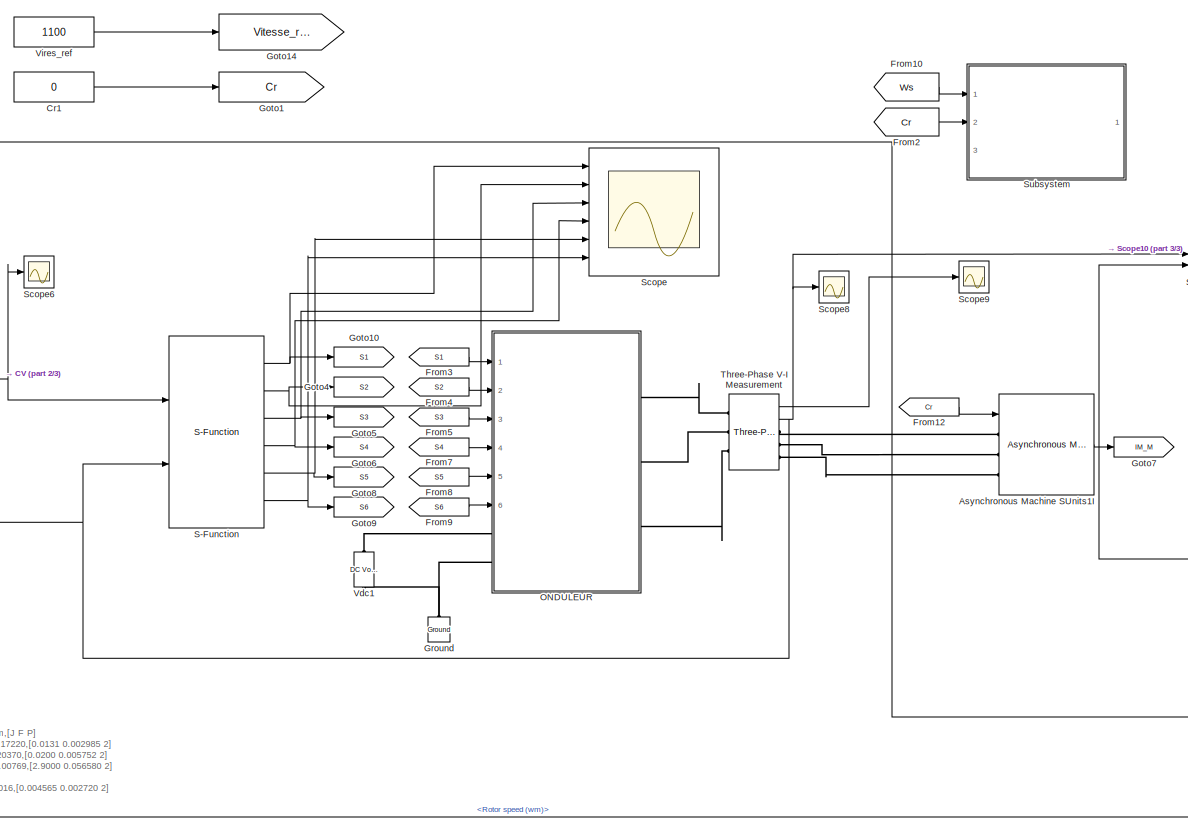
[diagram: root canvas - part 1/3, center side, full height]
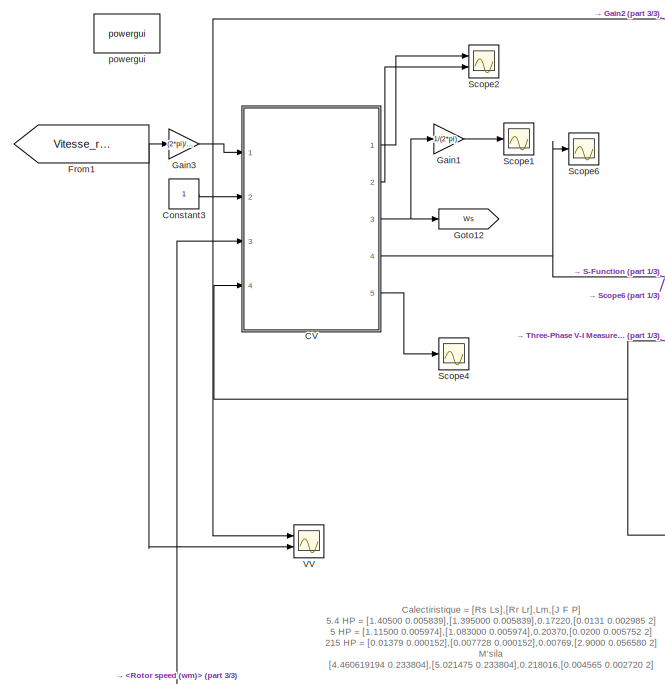
[diagram: root canvas - part 2/3, left side, full height]
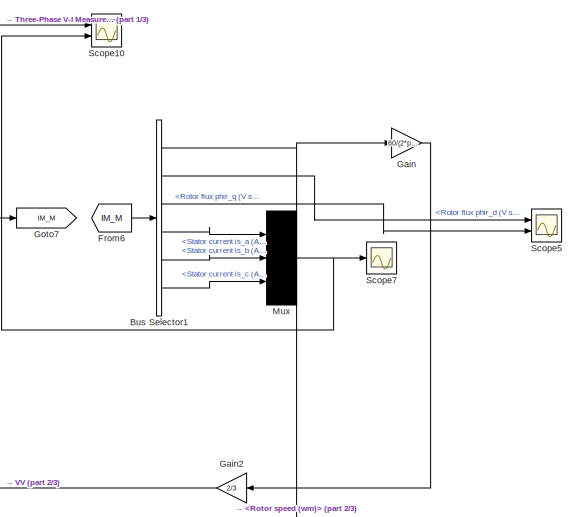
[diagram: root canvas - part 3/3, middle right region]
MODEL slx_9cb872e651f4
KIND model
CONFIG AbsTol = auto
CONFIG FixedStep = 1e-6
CONFIG MaxStep = auto
CONFIG MinStep = auto
CONFIG RelTol = 1e-3
CONFIG SampleTimeConstraint = Unconstrained
CONFIG Solver = FixedStepAuto
CONFIG SolverMode = Auto
CONFIG SolverName = FixedStepAuto
CONFIG StartTime = 0.0
CONFIG StopTime = 10
BLOCK [Reference] Asynchronous Machine SUnits1I   REF=powerlib/Machines/Asynchronous Machine
SI Units
  Ports = [1, 1, 0, 0, 0, 3]
  SourceBlock = powerlib/Machines/Asynchronous Machine\nSI Units
  SourceType = Asynchronous Machine
BLOCK [BusSelector] Bus Selector1
  OutputSignals = Mechanical.Rotor speed (wm),Rotor measurements.Rotor flux phir_d (V s),Rotor measurements.Rotor flux phir_q (V s),Stator measurements.Stator current is_a (A),Stator measurements.Stator current is_b (A),Stator measurements.Stator current is_c (A)
  Ports = [1, 6]
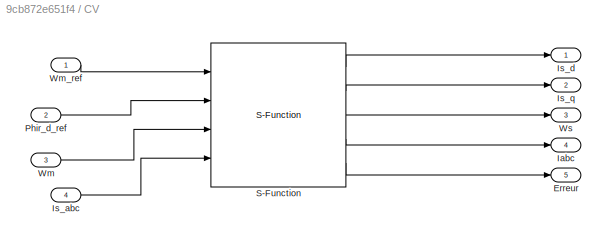
BLOCK [SubSystem] CV
  Ports = [4, 5]
  RequestExecContextInheritance = off
  Variant = off
BLOCK [Outport] CV/Erreur
  IconDisplay = Port number
  Port = 5
BLOCK [Outport] CV/Iabc
  IconDisplay = Port number
  Port = 4
BLOCK [Inport] CV/Is_abc
  IconDisplay = Port number
  Port = 4
BLOCK [Outport] CV/Is_d
  IconDisplay = Port number
BLOCK [Outport] CV/Is_q
  IconDisplay = Port number
  Port = 2
BLOCK [Inport] CV/Phir_d_ref
  IconDisplay = Port number
  Port = 2
BLOCK [S-Function] CV/S-Function
  EnableBusSupport = off
  FunctionName = CGA
  Parameters = [1.40500 0.005839],[1.395000 0.005839],0.17220,[0.0131 0.002985 2]
  Ports = [4, 5]
  SFunctionDeploymentMode = off
BLOCK [Inport] CV/Wm
  IconDisplay = Port number
  Port = 3
BLOCK [Inport] CV/Wm_ref
  IconDisplay = Port number
BLOCK [Outport] CV/Ws
  IconDisplay = Port number
  Port = 3
BLOCK [Constant] Constant3
BLOCK [Constant] Cr1
  Value = 0
BLOCK [From] From1
  GotoTag = Vitesse_ref
BLOCK [From] From10
  Commented = on
  GotoTag = Ws
BLOCK [From] From12
  GotoTag = Cr
BLOCK [From] From2
  Commented = on
  GotoTag = Cr
BLOCK [From] From3
  GotoTag = S1
BLOCK [From] From4
  GotoTag = S2
BLOCK [From] From5
  GotoTag = S3
BLOCK [From] From6
  GotoTag = IM_M
BLOCK [From] From7
  GotoTag = S4
BLOCK [From] From8
  GotoTag = S5
BLOCK [From] From9
  GotoTag = S6
BLOCK [Gain] Gain
  Gain = 60/(2*pi)
  OutDataTypeStr = Inherit: Inherit via internal rule
  ParamDataTypeStr = Inherit: Inherit via internal rule
  SaturateOnIntegerOverflow = off
BLOCK [Gain] Gain1
  Gain = 1/(2*pi)
  OutDataTypeStr = Inherit: Inherit via internal rule
  ParamDataTypeStr = Inherit: Inherit via internal rule
  SaturateOnIntegerOverflow = off
BLOCK [Gain] Gain2
  Gain = 2/3
  OutDataTypeStr = Inherit: Inherit via internal rule
  ParamDataTypeStr = Inherit: Inherit via internal rule
  SaturateOnIntegerOverflow = off
BLOCK [Gain] Gain3
  Gain = (2*pi)/20
  OutDataTypeStr = Inherit: Inherit via internal rule
  ParamDataTypeStr = Inherit: Inherit via internal rule
  SaturateOnIntegerOverflow = off
BLOCK [Goto] Goto1
  GotoTag = Cr
BLOCK [Goto] Goto10
  GotoTag = S1
BLOCK [Goto] Goto12
  GotoTag = Ws
BLOCK [Goto] Goto14
  GotoTag = Vitesse_ref
BLOCK [Goto] Goto4
  GotoTag = S2
BLOCK [Goto] Goto5
  GotoTag = S3
BLOCK [Goto] Goto6
  GotoTag = S4
BLOCK [Goto] Goto7
  GotoTag = IM_M
BLOCK [Goto] Goto8
  GotoTag = S5
BLOCK [Goto] Goto9
  GotoTag = S6
BLOCK [Reference] Ground  REF=powerlib/Elements/Ground
  Ports = [0, 0, 0, 0, 0, 1]
  SourceBlock = powerlib/Elements/Ground
  SourceType = Ground
BLOCK [Mux] Mux
  DisplayOption = bar
  Inputs = 3
  Ports = [3, 1]
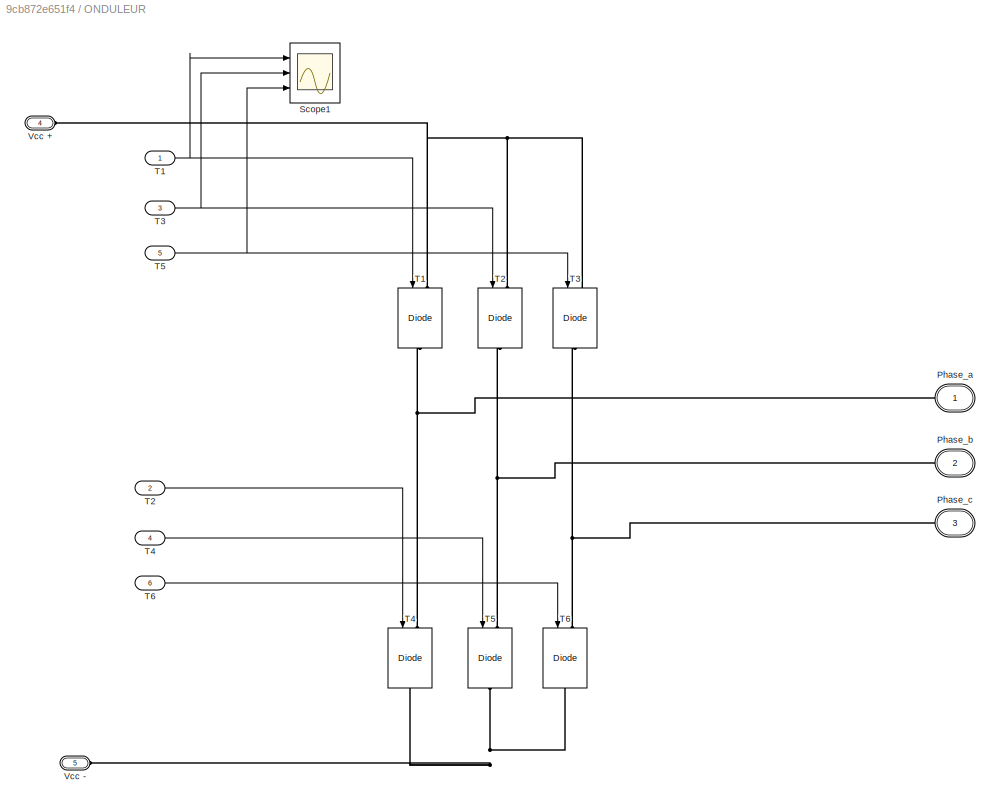
BLOCK [SubSystem] ONDULEUR
  Ports = [6, 0, 0, 0, 0, 2, 3]
  RequestExecContextInheritance = off
  Variant = off
BLOCK [PMIOPort] ONDULEUR/Phase_a
  Port = 1
  Side = Right
  Tag = PMCPort
BLOCK [PMIOPort] ONDULEUR/Phase_b
  Port = 2
  Side = Right
  Tag = PMCPort
BLOCK [PMIOPort] ONDULEUR/Phase_c
  Port = 3
  Side = Right
  Tag = PMCPort
BLOCK [Scope] ONDULEUR/Scope1
  NumInputPorts = 3
  Ports = [3]
  ScopeSpecificationString = Simulink.scopes.TimeScopeBlockCfg('CurrentConfiguration', extmgr.ConfigurationSet(extmgr.Configuration('Core','General UI',true),extmgr.Configuration('Core','Source UI',true),extmgr.Configuration('Sources','WiredSimulink',true,'DataLoggingVariableName','ScopeData1'),extmgr.Configuration('Visuals','Time Domain',true,'SerializedDisplays',{struct('MinYLimReal','-0.125','MaxYLimReal','1.125','YLabelRe...<+2816ch>
BLOCK [Reference] ONDULEUR/T1  REF=powerlib/Power
Electronics/IGBT//Diode
  Ports = [1, 0, 0, 0, 0, 1, 1]
  SourceBlock = powerlib/Power\nElectronics/IGBT//Diode
  SourceType = IGBT/Diode
BLOCK [Inport] ONDULEUR/T1 
  IconDisplay = Port number
BLOCK [Reference] ONDULEUR/T2  REF=powerlib/Power
Electronics/IGBT//Diode
  Ports = [1, 0, 0, 0, 0, 1, 1]
  SourceBlock = powerlib/Power\nElectronics/IGBT//Diode
  SourceType = IGBT/Diode
BLOCK [Inport] ONDULEUR/T2 
  IconDisplay = Port number
  Port = 2
BLOCK [Reference] ONDULEUR/T3  REF=powerlib/Power
Electronics/IGBT//Diode
  Ports = [1, 0, 0, 0, 0, 1, 1]
  SourceBlock = powerlib/Power\nElectronics/IGBT//Diode
  SourceType = IGBT/Diode
BLOCK [Inport] ONDULEUR/T3  
  IconDisplay = Port number
  Port = 3
BLOCK [Reference] ONDULEUR/T4  REF=powerlib/Power
Electronics/IGBT//Diode
  Ports = [1, 0, 0, 0, 0, 1, 1]
  SourceBlock = powerlib/Power\nElectronics/IGBT//Diode
  SourceType = IGBT/Diode
BLOCK [Inport] ONDULEUR/T4 
  IconDisplay = Port number
  Port = 4
BLOCK [Reference] ONDULEUR/T5  REF=powerlib/Power
Electronics/IGBT//Diode
  Ports = [1, 0, 0, 0, 0, 1, 1]
  SourceBlock = powerlib/Power\nElectronics/IGBT//Diode
  SourceType = IGBT/Diode
BLOCK [Inport] ONDULEUR/T5 
  IconDisplay = Port number
  Port = 5
BLOCK [Reference] ONDULEUR/T6  REF=powerlib/Power
Electronics/IGBT//Diode
  Ports = [1, 0, 0, 0, 0, 1, 1]
  SourceBlock = powerlib/Power\nElectronics/IGBT//Diode
  SourceType = IGBT/Diode
BLOCK [Inport] ONDULEUR/T6 
  IconDisplay = Port number
  Port = 6
BLOCK [PMIOPort] ONDULEUR/Vcc +
  Port = 4
  Side = Left
BLOCK [PMIOPort] ONDULEUR/Vcc -
  Port = 5
  Side = Left
BLOCK [S-Function] S-Function
  EnableBusSupport = off
  FunctionName = HYSTERISISE
  Ports = [2, 6]
  SFunctionDeploymentMode = off
BLOCK [Scope] Scope
  NumInputPorts = 6
  Ports = [6]
  ScopeSpecificationString = Simulink.scopes.TimeScopeBlockCfg('CurrentConfiguration', extmgr.ConfigurationSet(extmgr.Configuration('Core','General UI',true),extmgr.Configuration('Core','Source UI',true),extmgr.Configuration('Sources','WiredSimulink',true,'DataLoggingVariableName','ScopeData1'),extmgr.Configuration('Visuals','Time Domain',true,'SerializedDisplays',{struct('MinYLimReal','-0.125','MaxYLimReal','1.125','YLabelRe...<+1535ch>
BLOCK [Scope] Scope1
  Ports = [1]
  ScopeSpecificationString = Simulink.scopes.TimeScopeBlockCfg('CurrentConfiguration', extmgr.ConfigurationSet(extmgr.Configuration('Core','General UI',true),extmgr.Configuration('Core','Source UI',true),extmgr.Configuration('Sources','WiredSimulink',true,'DataLoggingVariableName','ScopeData2'),extmgr.Configuration('Visuals','Time Domain',true,'SerializedDisplays',{struct('MinYLimReal','-9.93243','MaxYLimReal','160.07281','YL...<+1473ch>
BLOCK [Scope] Scope10
  NumInputPorts = 2
  Ports = [2]
  ScopeSpecificationString = Simulink.scopes.TimeScopeBlockCfg('CurrentConfiguration', extmgr.ConfigurationSet(extmgr.Configuration('Core','General UI',true),extmgr.Configuration('Core','Source UI',true),extmgr.Configuration('Sources','WiredSimulink',true,'DataLoggingVariableName','ScopeData1'),extmgr.Configuration('Visuals','Time Domain',true,'SerializedDisplays',{struct('MinYLimReal','-36.09789','MaxYLimReal','36.09445','YL...<+2323ch>
BLOCK [Scope] Scope2
  NumInputPorts = 2
  Ports = [2]
  ScopeSpecificationString = Simulink.scopes.TimeScopeBlockCfg('CurrentConfiguration', extmgr.ConfigurationSet(extmgr.Configuration('Core','General UI',true),extmgr.Configuration('Core','Source UI',true),extmgr.Configuration('Sources','WiredSimulink',true,'DataLoggingVariableName','ScopeData3'),extmgr.Configuration('Visuals','Time Domain',true,'SerializedDisplays',{struct('MinYLimReal','-23994.07368','MaxYLimReal','219207.261...<+1459ch>
BLOCK [Scope] Scope4
  Ports = [1]
  ScopeSpecificationString = Simulink.scopes.TimeScopeBlockCfg('CurrentConfiguration', extmgr.ConfigurationSet(extmgr.Configuration('Core','General UI',true),extmgr.Configuration('Core','Source UI',true),extmgr.Configuration('Sources','WiredSimulink',true,'DataLoggingVariableName','ScopeData5'),extmgr.Configuration('Visuals','Time Domain',true,'SerializedDisplays',{struct('MinYLimReal','-1.00133','MaxYLimReal','4.01269','YLab...<+1461ch>
BLOCK [Scope] Scope5
  NumInputPorts = 2
  Ports = [2]
  ScopeSpecificationString = Simulink.scopes.TimeScopeBlockCfg('CurrentConfiguration', extmgr.ConfigurationSet(extmgr.Configuration('Core','General UI',true),extmgr.Configuration('Core','Source UI',true),extmgr.Configuration('Sources','WiredSimulink',true,'DataLoggingVariableName','ScopeData21','DataLoggingLimitDataPoints',true,'DataLoggingSaveFormat','Array','DataLoggingDecimation','1','DataLoggingDecimateData',true),extmgr....<+1567ch>
BLOCK [Scope] Scope6
  Ports = [1]
  ScopeSpecificationString = Simulink.scopes.TimeScopeBlockCfg('CurrentConfiguration', extmgr.ConfigurationSet(extmgr.Configuration('Core','General UI',true),extmgr.Configuration('Core','Source UI',true),extmgr.Configuration('Sources','WiredSimulink',true,'DataLoggingVariableName','ScopeData6'),extmgr.Configuration('Visuals','Time Domain',true,'SerializedDisplays',{struct('MinYLimReal','-71.4649','MaxYLimReal','66.7174','YLab...<+1510ch>
BLOCK [Scope] Scope7
  Ports = [1]
  ScopeSpecificationString = Simulink.scopes.TimeScopeBlockCfg('CurrentConfiguration', extmgr.ConfigurationSet(extmgr.Configuration('Core','General UI',true),extmgr.Configuration('Core','Source UI',true),extmgr.Configuration('Sources','WiredSimulink',true,'DataLoggingVariableName','ScopeData1'),extmgr.Configuration('Visuals','Time Domain',true,'SerializedDisplays',{struct('MinYLimReal','-34.82652','MaxYLimReal','34.8389','YLa...<+1542ch>
BLOCK [Scope] Scope8
  Ports = [1]
  ScopeSpecificationString = Simulink.scopes.TimeScopeBlockCfg('CurrentConfiguration', extmgr.ConfigurationSet(extmgr.Configuration('Core','General UI',true),extmgr.Configuration('Core','Source UI',true),extmgr.Configuration('Sources','WiredSimulink',true,'DataLoggingVariableName','ScopeData2'),extmgr.Configuration('Visuals','Time Domain',true,'SerializedDisplays',{struct('MinYLimReal','-17.53345','MaxYLimReal','17.53293','YL...<+1606ch>
BLOCK [Scope] Scope9
  Ports = [1]
  ScopeSpecificationString = Simulink.scopes.TimeScopeBlockCfg('CurrentConfiguration', extmgr.ConfigurationSet(extmgr.Configuration('Core','General UI',true),extmgr.Configuration('Core','Source UI',true),extmgr.Configuration('Sources','WiredSimulink',true,'DataLoggingVariableName','ScopeData3'),extmgr.Configuration('Visuals','Time Domain',true,'SerializedDisplays',{struct('MinYLimReal','-290.4606','MaxYLimReal','792.91317','Y...<+1585ch>
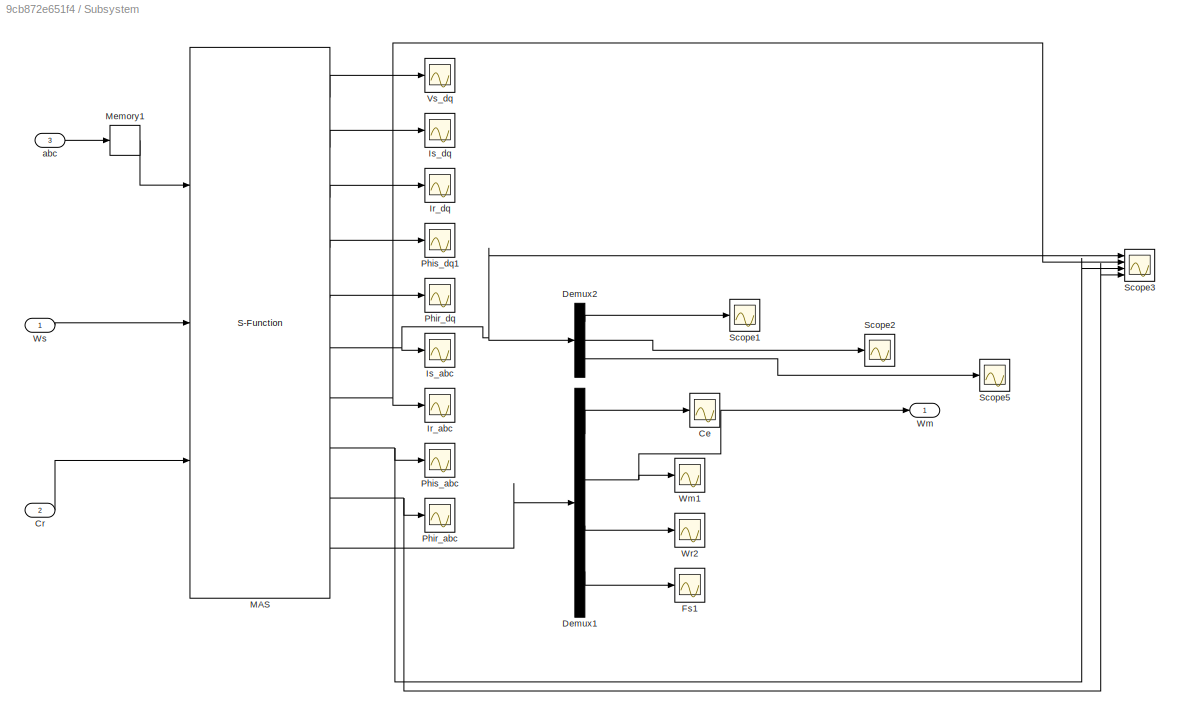
BLOCK [SubSystem] Subsystem
  Commented = on
  Ports = [3, 1]
  RequestExecContextInheritance = off
  Variant = off
BLOCK [Scope] Subsystem/Ce
  Ports = [1]
  ScopeSpecificationString = C++SS(StrPVP('SaveName','ScopeData2'),StrPVP('LimitDataPoints','on'),StrPVP('DataFormat','Array'),StrPVP('Decimation','1'),StrPVP('BlockParamSampleInput','off'))
BLOCK [Inport] Subsystem/Cr
  IconDisplay = Port number
  Port = 2
BLOCK [Demux] Subsystem/Demux1
  DisplayOption = bar
  Ports = [1, 4]
BLOCK [Demux] Subsystem/Demux2
  DisplayOption = bar
  Outputs = 3
  Ports = [1, 3]
BLOCK [Scope] Subsystem/Fs1
  Ports = [1]
  ScopeSpecificationString = C++SS(StrPVP('SaveName','ScopeData3'),StrPVP('LimitDataPoints','on'),StrPVP('DataFormat','Array'),StrPVP('Decimation','1'),StrPVP('BlockParamSampleInput','off'))
BLOCK [Scope] Subsystem/Ir_abc
  Ports = [1]
  ScopeSpecificationString = C++SS(StrPVP('SaveName','ScopeData4'),StrPVP('LimitDataPoints','on'),StrPVP('DataFormat','Array'),StrPVP('Decimation','1'),StrPVP('BlockParamSampleInput','off'))
BLOCK [Scope] Subsystem/Ir_dq
  Ports = [1]
  ScopeSpecificationString = C++SS(StrPVP('SaveName','ScopeData5'),StrPVP('LimitDataPoints','on'),StrPVP('DataFormat','Array'),StrPVP('Decimation','1'),StrPVP('BlockParamSampleInput','off'))
BLOCK [Scope] Subsystem/Is_abc
  Ports = [1]
  ScopeSpecificationString = C++SS(StrPVP('SaveName','ScopeData6'),StrPVP('LimitDataPoints','on'),StrPVP('DataFormat','Array'),StrPVP('Decimation','1'),StrPVP('BlockParamSampleInput','off'))
BLOCK [Scope] Subsystem/Is_dq
  Ports = [1]
  ScopeSpecificationString = C++SS(StrPVP('SaveName','ScopeData7'),StrPVP('LimitDataPoints','on'),StrPVP('DataFormat','Array'),StrPVP('Decimation','1'),StrPVP('BlockParamSampleInput','off'))
BLOCK [S-Function] Subsystem/MAS
  EnableBusSupport = off
  FunctionName = MOTEUR_ASYNC
  Parameters = [1.40500 0.005839],[1.395000 0.005839],0.17220,[0.0131 0.002985 2]
  Ports = [3, 10]
  SFunctionDeploymentMode = off
BLOCK [Memory] Subsystem/Memory1
BLOCK [Scope] Subsystem/Phir_abc
  Ports = [1]
  ScopeSpecificationString = C++SS(StrPVP('SaveName','ScopeData8'),StrPVP('LimitDataPoints','on'),StrPVP('DataFormat','Array'),StrPVP('Decimation','1'),StrPVP('BlockParamSampleInput','off'))
BLOCK [Scope] Subsystem/Phir_dq
  Ports = [1]
  ScopeSpecificationString = C++SS(StrPVP('SaveName','ScopeData9'),StrPVP('LimitDataPoints','on'),StrPVP('DataFormat','Array'),StrPVP('Decimation','1'),StrPVP('BlockParamSampleInput','off'))
BLOCK [Scope] Subsystem/Phis_abc
  Ports = [1]
  ScopeSpecificationString = C++SS(StrPVP('SaveName','ScopeData10'),StrPVP('LimitDataPoints','on'),StrPVP('DataFormat','Array'),StrPVP('Decimation','1'),StrPVP('BlockParamSampleInput','off'))
BLOCK [Scope] Subsystem/Phis_dq1
  Ports = [1]
  ScopeSpecificationString = C++SS(StrPVP('SaveName','ScopeData11'),StrPVP('LimitDataPoints','on'),StrPVP('DataFormat','Array'),StrPVP('Decimation','1'),StrPVP('BlockParamSampleInput','off'))
BLOCK [Scope] Subsystem/Scope1
  Ports = [1]
  ScopeSpecificationString = C++SS(StrPVP('SaveName','ScopeData1'),StrPVP('LimitDataPoints','on'),StrPVP('DataFormat','Array'),StrPVP('Decimation','1'),StrPVP('BlockParamSampleInput','off'),StrPVP('SaveName','ScopeData13'),StrPVP('SaveName','ScopeData17'))
BLOCK [Scope] Subsystem/Scope2
  Ports = [1]
  ScopeSpecificationString = C++SS(StrPVP('SaveName','ScopeData1'),StrPVP('LimitDataPoints','on'),StrPVP('DataFormat','Array'),StrPVP('Decimation','1'),StrPVP('BlockParamSampleInput','off'),StrPVP('SaveName','ScopeData13'),StrPVP('SaveName','ScopeData17'),StrPVP('SaveName','ScopeData18'))
BLOCK [Scope] Subsystem/Scope3
  NumInputPorts = 4
  Ports = [4]
  ScopeSpecificationString = C++SS(StrPVP('SaveName','ScopeData12'),StrPVP('LimitDataPoints','on'),StrPVP('DataFormat','Array'),StrPVP('Decimation','1'),StrPVP('BlockParamSampleInput','off'))
BLOCK [Scope] Subsystem/Scope5
  Ports = [1]
  ScopeSpecificationString = C++SS(StrPVP('SaveName','ScopeData1'),StrPVP('LimitDataPoints','on'),StrPVP('DataFormat','Array'),StrPVP('Decimation','1'),StrPVP('BlockParamSampleInput','off'),StrPVP('SaveName','ScopeData13'))
BLOCK [Scope] Subsystem/Vs_dq
  Ports = [1]
  ScopeSpecificationString = C++SS(StrPVP('SaveName','ScopeData14'),StrPVP('LimitDataPoints','on'),StrPVP('DataFormat','Array'),StrPVP('Decimation','1'),StrPVP('BlockParamSampleInput','off'))
BLOCK [Outport] Subsystem/Wm
  IconDisplay = Port number
BLOCK [Scope] Subsystem/Wm1
  Ports = [1]
  ScopeSpecificationString = C++SS(StrPVP('SaveName','ScopeData15'),StrPVP('LimitDataPoints','on'),StrPVP('DataFormat','Array'),StrPVP('Decimation','1'),StrPVP('BlockParamSampleInput','off'))
BLOCK [Scope] Subsystem/Wr2
  Ports = [1]
  ScopeSpecificationString = C++SS(StrPVP('SaveName','ScopeData16'),StrPVP('LimitDataPoints','on'),StrPVP('DataFormat','Array'),StrPVP('Decimation','1'),StrPVP('BlockParamSampleInput','off'))
BLOCK [Inport] Subsystem/Ws
  IconDisplay = Port number
BLOCK [Inport] Subsystem/abc
  IconDisplay = Port number
  Port = 3
BLOCK [Reference] Three-Phase V-I Measurement  REF=powerlib/Measurements/Three-Phase
V-I Measurement
  Ports = [0, 2, 0, 0, 0, 3, 3]
  SourceBlock = powerlib/Measurements/Three-Phase\nV-I Measurement
  SourceType = Three-Phase VI Measurement
BLOCK [Scope] VV
  NumInputPorts = 2
  Ports = [2]
  ScopeSpecificationString = Simulink.scopes.TimeScopeBlockCfg('CurrentConfiguration', extmgr.ConfigurationSet(extmgr.Configuration('Core','General UI',true),extmgr.Configuration('Core','Source UI',true),extmgr.Configuration('Sources','WiredSimulink',true,'DataLoggingVariableName','ScopeData19'),extmgr.Configuration('Visuals','Time Domain',true,'SerializedDisplays',{struct('MinYLimReal','936.06732','MaxYLimReal','1562.65919',...<+1495ch>
BLOCK [Reference] Vdc1  REF=powerlib/Electrical
Sources/DC Voltage Source
  Ports = [0, 0, 0, 0, 0, 1, 1]
  SourceBlock = powerlib/Electrical\nSources/DC Voltage Source
  SourceType = DC Voltage Source
BLOCK [Constant] Vires_ref
  Value = 1100
BLOCK [Reference] powergui  REF=powerlib/powergui
  Ports = []
  Priority = 1
  SourceBlock = powerlib/powergui
  SourceType = PSB option menu block
  UserDataPersistent = on
ANNOTATION (root): Calectiristique = [Rs Ls],[Rr Lr],Lm,[J F P] 5.4 HP = [1.40500 0.005839],[1.395000 0.005839],0.17220,[0.0131 0.002985 2] 5 HP = [1.11500 0.005974],[1.083000 0.005974],0.20370,[0.0200 0.005752 2] 215 HP = [0.01379 0.000152],[0.007728 0.000152],0.00769,[2.9000 0.056580 2] M'sila [4.460619194 0.233804],[5.021475 0.233804],0.218016,[0.004565 0.002720 2] [1.8 0.1554],[1.8 0.1568],0.15,[0.07 0 2] fr
LINE Asynchronous Machine SUnits1I :1 -> Goto7:1
NET Bus Selector1:1 -> CV:3, Gain:1
LINE Bus Selector1:2 -> Scope5:1
LINE Bus Selector1:3 -> Scope5:2
LINE Bus Selector1:4 -> Mux:1
LINE Bus Selector1:5 -> Mux:2
LINE Bus Selector1:6 -> Mux:3
LINE CV/Is_abc:1 -> CV/S-Function:4
LINE CV/Phir_d_ref:1 -> CV/S-Function:2
LINE CV/S-Function:1 -> CV/Is_d:1
LINE CV/S-Function:2 -> CV/Is_q:1
LINE CV/S-Function:3 -> CV/Ws:1
LINE CV/S-Function:4 -> CV/Iabc:1
LINE CV/S-Function:5 -> CV/Erreur:1
LINE CV/Wm:1 -> CV/S-Function:3
LINE CV/Wm_ref:1 -> CV/S-Function:1
LINE CV:1 -> Scope2:1
LINE CV:2 -> Scope2:2
NET CV:3 -> Gain1:1, Goto12:1
NET CV:4 -> S-Function:1, Scope6:1
LINE CV:5 -> Scope4:1
LINE Constant3:1 -> CV:2
LINE Cr1:1 -> Goto1:1
LINE From10:1 -> Subsystem:1
LINE From12:1 -> Asynchronous Machine SUnits1I :1
NET From1:1 -> Gain3:1, VV:2
LINE From2:1 -> Subsystem:2
LINE From3:1 -> ONDULEUR:1
LINE From4:1 -> ONDULEUR:2
LINE From5:1 -> ONDULEUR:3
LINE From6:1 -> Bus Selector1:1
LINE From7:1 -> ONDULEUR:4
LINE From8:1 -> ONDULEUR:5
LINE From9:1 -> ONDULEUR:6
LINE Gain1:1 -> Scope1:1
LINE Gain2:1 -> VV:1
LINE Gain3:1 -> CV:1
LINE Gain:1 -> Gain2:1
NET Mux:1 -> Scope10:2, Scope7:1
NET ONDULEUR/T1 :1 -> ONDULEUR/Scope1:1, ONDULEUR/T1:1
LINE ONDULEUR/T2 :1 -> ONDULEUR/T4:1
NET ONDULEUR/T3  :1 -> ONDULEUR/Scope1:2, ONDULEUR/T2:1
LINE ONDULEUR/T4 :1 -> ONDULEUR/T5:1
NET ONDULEUR/T5 :1 -> ONDULEUR/Scope1:3, ONDULEUR/T3:1
LINE ONDULEUR/T6 :1 -> ONDULEUR/T6:1
NET S-Function:1 -> Goto10:1, Scope:1
NET S-Function:2 -> Goto4:1, Scope:2
NET S-Function:3 -> Goto5:1, Scope:3
NET S-Function:4 -> Goto6:1, Scope:4
NET S-Function:5 -> Goto8:1, Scope:5
NET S-Function:6 -> Goto9:1, Scope:6
LINE Subsystem/Cr:1 -> Subsystem/MAS:3
LINE Subsystem/Demux1:1 -> Subsystem/Ce:1
NET Subsystem/Demux1:2 -> Subsystem/Wm1:1, Subsystem/Wm:1
LINE Subsystem/Demux1:3 -> Subsystem/Wr2:1
LINE Subsystem/Demux1:4 -> Subsystem/Fs1:1
LINE Subsystem/Demux2:1 -> Subsystem/Scope1:1
LINE Subsystem/Demux2:2 -> Subsystem/Scope2:1
LINE Subsystem/Demux2:3 -> Subsystem/Scope5:1
LINE Subsystem/MAS:1 -> Subsystem/Vs_dq:1
LINE Subsystem/MAS:10 -> Subsystem/Demux1:1
LINE Subsystem/MAS:2 -> Subsystem/Is_dq:1
LINE Subsystem/MAS:3 -> Subsystem/Ir_dq:1
LINE Subsystem/MAS:4 -> Subsystem/Phis_dq1:1
LINE Subsystem/MAS:5 -> Subsystem/Phir_dq:1
NET Subsystem/MAS:6 -> Subsystem/Demux2:1, Subsystem/Is_abc:1, Subsystem/Scope3:1
NET Subsystem/MAS:7 -> Subsystem/Ir_abc:1, Subsystem/Scope3:2
NET Subsystem/MAS:8 -> Subsystem/Phis_abc:1, Subsystem/Scope3:3
NET Subsystem/MAS:9 -> Subsystem/Phir_abc:1, Subsystem/Scope3:4
LINE Subsystem/Memory1:1 -> Subsystem/MAS:1
LINE Subsystem/Ws:1 -> Subsystem/MAS:2
LINE Subsystem/abc:1 -> Subsystem/Memory1:1
LINE Three-Phase V-I Measurement:1 -> Scope9:1
NET Three-Phase V-I Measurement:2 -> CV:4, S-Function:2, Scope10:1, Scope8:1
LINE Vires_ref:1 -> Goto14:1
PLINE Asynchronous Machine SUnits1I :LConn1 -- Three-Phase V-I Measurement:RConn1
PLINE Asynchronous Machine SUnits1I :LConn2 -- Three-Phase V-I Measurement:RConn2
PLINE Asynchronous Machine SUnits1I :LConn3 -- Three-Phase V-I Measurement:RConn3
PNET net1: Ground:LConn1 -- ONDULEUR:LConn2 -- Vdc1:LConn1
PNET net2: ONDULEUR/Phase_a:RConn1 -- ONDULEUR/T1:RConn1 -- ONDULEUR/T4:LConn1
PNET net3: ONDULEUR/Phase_b:RConn1 -- ONDULEUR/T2:RConn1 -- ONDULEUR/T5:LConn1
PNET net4: ONDULEUR/Phase_c:RConn1 -- ONDULEUR/T3:RConn1 -- ONDULEUR/T6:LConn1
PNET net5: ONDULEUR/T1:LConn1 -- ONDULEUR/T2:LConn1 -- ONDULEUR/T3:LConn1 -- ONDULEUR/Vcc +:RConn1
PNET net6: ONDULEUR/T4:RConn1 -- ONDULEUR/T5:RConn1 -- ONDULEUR/T6:RConn1 -- ONDULEUR/Vcc -:RConn1
PLINE ONDULEUR:LConn1 -- Vdc1:RConn1
PLINE ONDULEUR:RConn1 -- Three-Phase V-I Measurement:LConn1
PLINE ONDULEUR:RConn2 -- Three-Phase V-I Measurement:LConn2
PLINE ONDULEUR:RConn3 -- Three-Phase V-I Measurement:LConn3
note: NET lines group one-source signal fan-out (src -> all destinations, sorted); 1:1 wires keep LINE; PNET lines group multi-terminal physical nets as a canonical sorted terminal list (undirected conserving connections); 2-terminal nets keep the pairwise PLINE form
